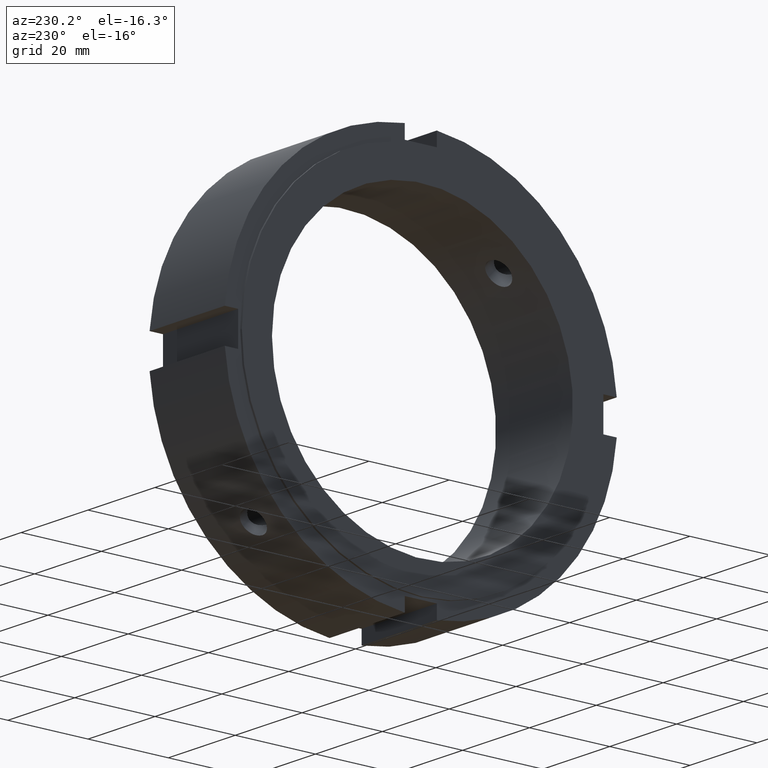
[diagram: clean part render]
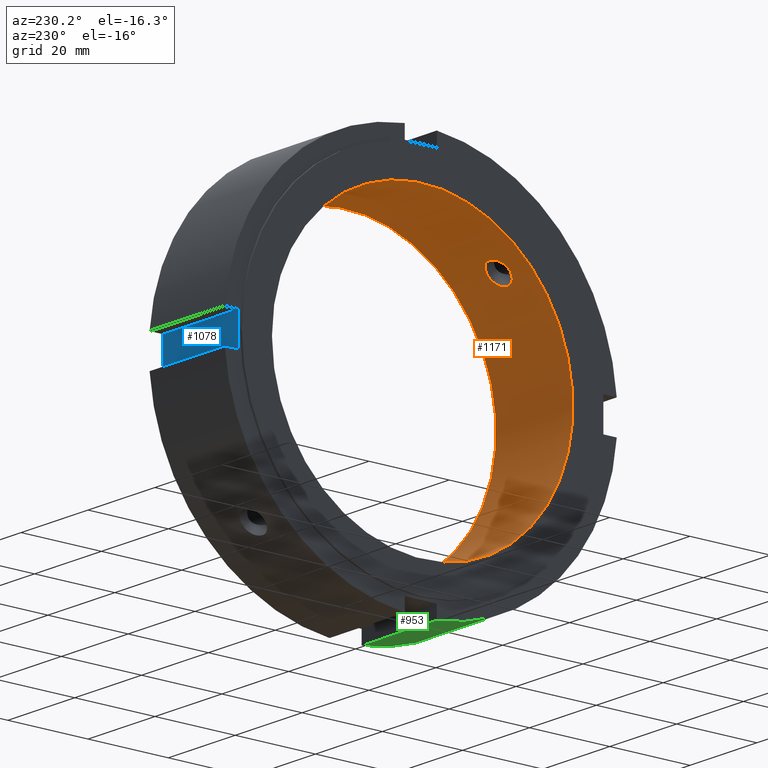
[diagram: same view with three faces highlighted in distinct colors, each labeled with its STEP entity id]
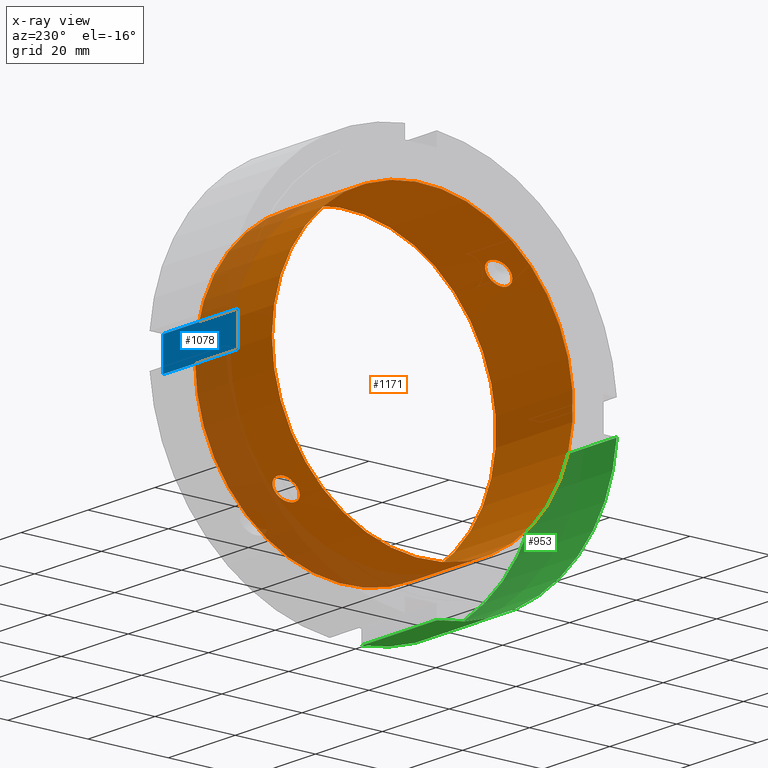
[diagram: x-ray of the same camera — body ghosted, the three highlighted faces saturated]
A machine part, auxiliary view with three faces highlighted in distinct colors.
The next image is the same camera in x-ray (body ghosted, the three faces saturated) — at least one of them is partly hidden behind the body in this view.
Their STEP definitions:

[orange] entity #1171 — the highlighted cylindrical surface (bore or boss wall) has radius 37.5 mm, axis along (1, 0, 0).
#256=CARTESIAN_POINT('',(8.999999999999988,-28.617776044288341,24.233714000931769));
#257=VERTEX_POINT('',#256);
#258=CARTESIAN_POINT('',(8.999999999999989,-28.617776044288341,24.233714000931769));
#259=CARTESIAN_POINT('',(9.389433940625233,-28.617776044288341,24.233714000931769));
#260=CARTESIAN_POINT('',(9.804703736285871,-28.567464832805097,24.293520341032785));
#261=CARTESIAN_POINT('',(10.568426878396394,-28.360858680613447,24.534401813729826));
#262=CARTESIAN_POINT('',(10.91689537325184,-28.204322086290169,24.715221520793229));
#263=CARTESIAN_POINT('',(11.467166234054487,-27.83800531566839,25.127105264497267));
#264=CARTESIAN_POINT('',(11.705713500587265,-27.603724174121357,25.385633266928984));
#265=CARTESIAN_POINT('',(12.022135293262883,-27.080786093992909,25.942763715019581));
#266=CARTESIAN_POINT('',(12.099999999999991,-26.791875238311988,26.241133350679085));
#267=CARTESIAN_POINT('',(12.099999999999987,-26.241133350679053,26.791875238312016));
#268=CARTESIAN_POINT('',(12.022135293262881,-25.942763715019545,27.080786093992934));
#269=CARTESIAN_POINT('',(11.70571350058726,-25.385633266928952,27.603724174121382));
#270=CARTESIAN_POINT('',(11.467166234054487,-25.127105264497231,27.838005315668415));
#271=CARTESIAN_POINT('',(10.916895373251839,-24.715221520793193,28.204322086290198));
#272=CARTESIAN_POINT('',(10.568426878396384,-24.534401813729808,28.360858680613465));
#273=CARTESIAN_POINT('',(9.804703736285861,-24.293520341032767,28.567464832805115));
#274=CARTESIAN_POINT('',(9.389433940625231,-24.233714000931734,28.617776044288373));
#275=CARTESIAN_POINT('',(8.610566059374744,-24.233714000931734,28.617776044288373));
#276=CARTESIAN_POINT('',(8.195296263714113,-24.293520341032767,28.567464832805115));
#277=CARTESIAN_POINT('',(7.431573121603591,-24.534401813729808,28.360858680613465));
#278=CARTESIAN_POINT('',(7.083104626748138,-24.715221520793193,28.204322086290198));
#279=CARTESIAN_POINT('',(6.532833765945489,-25.127105264497231,27.838005315668415));
#280=CARTESIAN_POINT('',(6.294286499412714,-25.385633266928952,27.603724174121375));
#281=CARTESIAN_POINT('',(5.977864706737091,-25.942763715019545,27.080786093992927));
#282=CARTESIAN_POINT('',(5.899999999999988,-26.241133350679053,26.791875238312013));
#283=CARTESIAN_POINT('',(5.899999999999988,-26.791875238311988,26.241133350679085));
#284=CARTESIAN_POINT('',(5.977864706737091,-27.080786093992902,25.942763715019581));
#285=CARTESIAN_POINT('',(6.294286499412709,-27.60372417412135,25.385633266928984));
#286=CARTESIAN_POINT('',(6.532833765945489,-27.83800531566839,25.127105264497267));
#287=CARTESIAN_POINT('',(7.083104626748135,-28.204322086290169,24.715221520793229));
#288=CARTESIAN_POINT('',(7.431573121603582,-28.360858680613447,24.534401813729826));
#289=CARTESIAN_POINT('',(8.195296263714106,-28.567464832805097,24.293520341032785));
#290=CARTESIAN_POINT('',(8.610566059374746,-28.617776044288341,24.233714000931769));
#291=CARTESIAN_POINT('',(8.999999999999989,-28.617776044288341,24.233714000931769));
#292=B_SPLINE_CURVE_WITH_KNOTS('',3,(#258,#259,#260,#261,#262,#263,#264,#265,#266,#267,#268,#269,#270,#271,#272,#273,#274,#275,#276,#277,#278,#279,#280,#281,#282,#283,#284,#285,#286,#287,#288,#289,#290,#291),.UNSPECIFIED.,.T.,.U.,(4,2,2,2,2,2,2,2,2,2,2,2,2,2,2,2,4),(0.0,0.116830182187573,0.233660364375146,0.350490361403764,0.467320358432382,0.584150355460999,0.700980352489617,0.81781053467719,0.934640716864763,1.051470899052336,1.16830108123991,1.285131078268527,1.401961075297145,1.518791072325763,1.63562106935438,1.752451251541953,1.869281433729527),.UNSPECIFIED.);
#293=EDGE_CURVE('',#257,#257,#292,.T.);
#486=CARTESIAN_POINT('',(8.999999999999988,24.233714000931762,-28.617776044288345));
#487=VERTEX_POINT('',#486);
#488=CARTESIAN_POINT('',(8.999999999999988,24.233714000931759,-28.617776044288345));
#489=CARTESIAN_POINT('',(8.610566059374744,24.233714000931759,-28.617776044288345));
#490=CARTESIAN_POINT('',(8.195296263714113,24.293520341032785,-28.567464832805097));
#491=CARTESIAN_POINT('',(7.43157312160359,24.534401813729826,-28.360858680613447));
#492=CARTESIAN_POINT('',(7.083104626748135,24.7152215207932,-28.204322086290183));
#493=CARTESIAN_POINT('',(6.532833765945486,25.127105264497239,-27.838005315668404));
#494=CARTESIAN_POINT('',(6.294286499412715,25.38563326692897,-27.603724174121371));
#495=CARTESIAN_POINT('',(5.977864706737092,25.942763715019566,-27.080786093992923));
#496=CARTESIAN_POINT('',(5.899999999999988,26.241133350679071,-26.791875238311999));
#497=CARTESIAN_POINT('',(5.899999999999988,26.791875238312002,-26.241133350679068));
#498=CARTESIAN_POINT('',(5.977864706737091,27.08078609399292,-25.942763715019556));
#499=CARTESIAN_POINT('',(6.294286499412708,27.603724174121368,-25.385633266928966));
#500=CARTESIAN_POINT('',(6.532833765945487,27.838005315668397,-25.127105264497246));
#501=CARTESIAN_POINT('',(7.083104626748133,28.204322086290183,-24.7152215207932));
#502=CARTESIAN_POINT('',(7.43157312160358,28.360858680613465,-24.534401813729808));
#503=CARTESIAN_POINT('',(8.195296263714102,28.567464832805115,-24.293520341032767));
#504=CARTESIAN_POINT('',(8.610566059374744,28.617776044288348,-24.233714000931755));
#505=CARTESIAN_POINT('',(9.389433940625231,28.617776044288348,-24.233714000931755));
#506=CARTESIAN_POINT('',(9.804703736285875,28.567464832805115,-24.293520341032767));
#507=CARTESIAN_POINT('',(10.568426878396398,28.360858680613465,-24.534401813729808));
#508=CARTESIAN_POINT('',(10.916895373251844,28.204322086290183,-24.7152215207932));
#509=CARTESIAN_POINT('',(11.467166234054488,27.838005315668397,-25.127105264497246));
#510=CARTESIAN_POINT('',(11.705713500587267,27.603724174121368,-25.385633266928966));
#511=CARTESIAN_POINT('',(12.022135293262883,27.08078609399292,-25.942763715019556));
#512=CARTESIAN_POINT('',(12.099999999999991,26.791875238312002,-26.241133350679064));
#513=CARTESIAN_POINT('',(12.099999999999987,26.241133350679071,-26.791875238311999));
#514=CARTESIAN_POINT('',(12.022135293262883,25.942763715019566,-27.080786093992923));
#515=CARTESIAN_POINT('',(11.70571350058726,25.38563326692897,-27.603724174121371));
#516=CARTESIAN_POINT('',(11.467166234054492,25.127105264497239,-27.838005315668404));
#517=CARTESIAN_POINT('',(10.91689537325184,24.7152215207932,-28.204322086290183));
#518=CARTESIAN_POINT('',(10.568426878396389,24.534401813729826,-28.360858680613447));
#519=CARTESIAN_POINT('',(9.804703736285866,24.293520341032785,-28.567464832805097));
#520=CARTESIAN_POINT('',(9.389433940625233,24.233714000931759,-28.617776044288345));
#521=CARTESIAN_POINT('',(8.999999999999989,24.233714000931759,-28.617776044288345));
#522=B_SPLINE_CURVE_WITH_KNOTS('',3,(#488,#489,#490,#491,#492,#493,#494,#495,#496,#497,#498,#499,#500,#501,#502,#503,#504,#505,#506,#507,#508,#509,#510,#511,#512,#513,#514,#515,#516,#517,#518,#519,#520,#521),.UNSPECIFIED.,.T.,.U.,(4,2,2,2,2,2,2,2,2,2,2,2,2,2,2,2,4),(0.0,0.116830182187573,0.233660364375146,0.350490361403764,0.467320358432382,0.584150355461,0.700980352489617,0.81781053467719,0.934640716864763,1.051470899052337,1.16830108123991,1.285131078268528,1.401961075297145,1.518791072325763,1.635621069354382,1.752451251541954,1.869281433729527),.UNSPECIFIED.);
#523=EDGE_CURVE('',#487,#487,#522,.T.);
#1002=CARTESIAN_POINT('',(22.999999999999993,37.5,0.0));
#1003=VERTEX_POINT('',#1002);
#1004=CARTESIAN_POINT('',(22.999999999999993,0.0,0.0));
#1005=DIRECTION('',(1.0,0.0,0.0));
#1006=DIRECTION('',(0.0,1.0,0.0));
#1007=AXIS2_PLACEMENT_3D('',#1004,#1005,#1006);
#1008=CIRCLE('',#1007,37.5);
#1009=EDGE_CURVE('',#1003,#1003,#1008,.T.);
#1095=CARTESIAN_POINT('',(-1.058741E-014,37.5,0.0));
#1096=VERTEX_POINT('',#1095);
#1097=CARTESIAN_POINT('',(-1.058615E-014,0.0,0.0));
#1098=DIRECTION('',(1.0,0.0,0.0));
#1099=DIRECTION('',(0.0,1.0,0.0));
#1100=AXIS2_PLACEMENT_3D('',#1097,#1098,#1099);
#1101=CIRCLE('',#1100,37.5);
#1102=EDGE_CURVE('',#1096,#1096,#1101,.T.);
#1154=CARTESIAN_POINT('',(11.499999999999993,0.0,0.0));
#1155=DIRECTION('',(1.0,0.0,0.0));
#1156=DIRECTION('',(0.0,1.0,0.0));
#1157=AXIS2_PLACEMENT_3D('',#1154,#1155,#1156);
#1158=CYLINDRICAL_SURFACE('',#1157,37.5);
#1159=ORIENTED_EDGE('',*,*,#1102,.F.);
#1160=EDGE_LOOP('',(#1159));
#1161=FACE_OUTER_BOUND('',#1160,.T.);
#1162=ORIENTED_EDGE('',*,*,#293,.T.);
#1163=EDGE_LOOP('',(#1162));
#1164=FACE_BOUND('',#1163,.T.);
#1165=ORIENTED_EDGE('',*,*,#523,.T.);
#1166=EDGE_LOOP('',(#1165));
#1167=FACE_BOUND('',#1166,.T.);
#1168=ORIENTED_EDGE('',*,*,#1009,.T.);
#1169=EDGE_LOOP('',(#1168));
#1170=FACE_BOUND('',#1169,.T.);
#1171=ADVANCED_FACE('',(#1161,#1164,#1167,#1170),#1158,.F.);

[blue] entity #1078 — the highlighted planar face has unit normal (0, -1, 0).
#963=CARTESIAN_POINT('',(22.999999999999989,45.500000000000007,-3.999999999999998));
#964=VERTEX_POINT('',#963);
#971=CARTESIAN_POINT('',(22.999999999999989,45.500000000000007,3.999999999999998));
#972=VERTEX_POINT('',#971);
#973=CARTESIAN_POINT('',(22.999999999999989,45.500000000000007,-3.999999999999997));
#974=DIRECTION('',(0.0,0.0,1.0));
#975=VECTOR('',#974,7.999999999999996);
#976=LINE('',#973,#975);
#977=EDGE_CURVE('',#964,#972,#976,.T.);
#1019=CARTESIAN_POINT('',(0.499999999999989,45.500000000000007,-3.999999999999998));
#1020=VERTEX_POINT('',#1019);
#1027=CARTESIAN_POINT('',(22.999999999999989,45.500000000000007,-3.999999999999998));
#1028=DIRECTION('',(-1.0,0.0,0.0));
#1029=VECTOR('',#1028,22.5);
#1030=LINE('',#1027,#1029);
#1031=EDGE_CURVE('',#964,#1020,#1030,.T.);
#1043=CARTESIAN_POINT('',(0.499999999999989,45.500000000000007,3.999999999999998));
#1044=VERTEX_POINT('',#1043);
#1053=CARTESIAN_POINT('',(22.999999999999989,45.500000000000007,3.999999999999998));
#1054=DIRECTION('',(-1.0,0.0,0.0));
#1055=VECTOR('',#1054,22.5);
#1056=LINE('',#1053,#1055);
#1057=EDGE_CURVE('',#972,#1044,#1056,.T.);
#1062=CARTESIAN_POINT('',(22.999999999999989,45.500000000000007,3.999999999999998));
#1063=DIRECTION('',(0.0,-1.0,0.0));
#1064=DIRECTION('',(0.0,0.0,-1.0));
#1065=AXIS2_PLACEMENT_3D('',#1062,#1063,#1064);
#1066=PLANE('',#1065);
#1067=CARTESIAN_POINT('',(0.499999999999989,45.500000000000007,3.999999999999998));
#1068=DIRECTION('',(0.0,0.0,-1.0));
#1069=VECTOR('',#1068,7.999999999999996);
#1070=LINE('',#1067,#1069);
#1071=EDGE_CURVE('',#1044,#1020,#1070,.T.);
#1072=ORIENTED_EDGE('',*,*,#1071,.F.);
#1073=ORIENTED_EDGE('',*,*,#1057,.F.);
#1074=ORIENTED_EDGE('',*,*,#977,.F.);
#1075=ORIENTED_EDGE('',*,*,#1031,.T.);
#1076=EDGE_LOOP('',(#1072,#1073,#1074,#1075));
#1077=FACE_OUTER_BOUND('',#1076,.T.);
#1078=ADVANCED_FACE('',(#1077),#1066,.F.);

[green] entity #953 — the highlighted cylindrical surface (partial cylindrical patch) has radius 49 mm, axis along (1, 0, 0).
#535=CARTESIAN_POINT('',(0.499999999999989,-4.000000000000007,-48.836461788299125));
#536=VERTEX_POINT('',#535);
#551=CARTESIAN_POINT('',(22.999999999999989,-4.000000000000007,-48.836461788299125));
#552=VERTEX_POINT('',#551);
#559=CARTESIAN_POINT('',(0.499999999999989,-4.000000000000007,-48.836461788299125));
#560=DIRECTION('',(1.0,0.0,0.0));
#561=VECTOR('',#560,22.5);
#562=LINE('',#559,#561);
#563=EDGE_CURVE('',#536,#552,#562,.T.);
#675=CARTESIAN_POINT('',(0.499999999999989,-48.836461788299125,-3.999999999999993));
#676=VERTEX_POINT('',#675);
#685=CARTESIAN_POINT('',(22.999999999999989,-48.836461788299125,-3.999999999999993));
#686=VERTEX_POINT('',#685);
#687=CARTESIAN_POINT('',(22.999999999999989,-48.836461788299125,-3.999999999999993));
#688=DIRECTION('',(-1.0,0.0,0.0));
#689=VECTOR('',#688,22.5);
#690=LINE('',#687,#689);
#691=EDGE_CURVE('',#686,#676,#690,.T.);
#930=CARTESIAN_POINT('',(11.749999999999989,0.0,0.0));
#931=DIRECTION('',(1.0,0.0,0.0));
#932=DIRECTION('',(0.0,1.0,0.0));
#933=AXIS2_PLACEMENT_3D('',#930,#931,#932);
#934=CYLINDRICAL_SURFACE('',#933,49.0);
#935=ORIENTED_EDGE('',*,*,#563,.T.);
#936=CARTESIAN_POINT('',(22.999999999999989,0.0,0.0));
#937=DIRECTION('',(1.0,0.0,0.0));
#938=DIRECTION('',(0.0,1.0,0.0));
#939=AXIS2_PLACEMENT_3D('',#936,#937,#938);
#940=CIRCLE('',#939,49.0);
#941=EDGE_CURVE('',#686,#552,#940,.T.);
#942=ORIENTED_EDGE('',*,*,#941,.F.);
#943=ORIENTED_EDGE('',*,*,#691,.T.);
#944=CARTESIAN_POINT('',(0.499999999999989,0.0,0.0));
#945=DIRECTION('',(1.0,0.0,0.0));
#946=DIRECTION('',(0.0,1.0,0.0));
#947=AXIS2_PLACEMENT_3D('',#944,#945,#946);
#948=CIRCLE('',#947,49.0);
#949=EDGE_CURVE('',#676,#536,#948,.T.);
#950=ORIENTED_EDGE('',*,*,#949,.T.);
#951=EDGE_LOOP('',(#935,#942,#943,#950));
#952=FACE_OUTER_BOUND('',#951,.T.);
#953=ADVANCED_FACE('',(#952),#934,.T.);